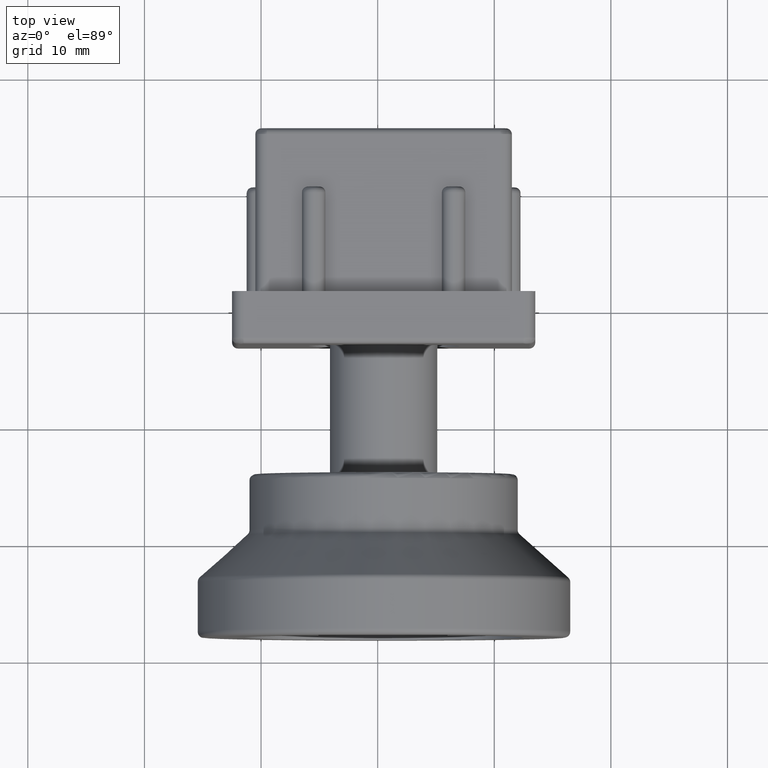
[diagram: clean part render]
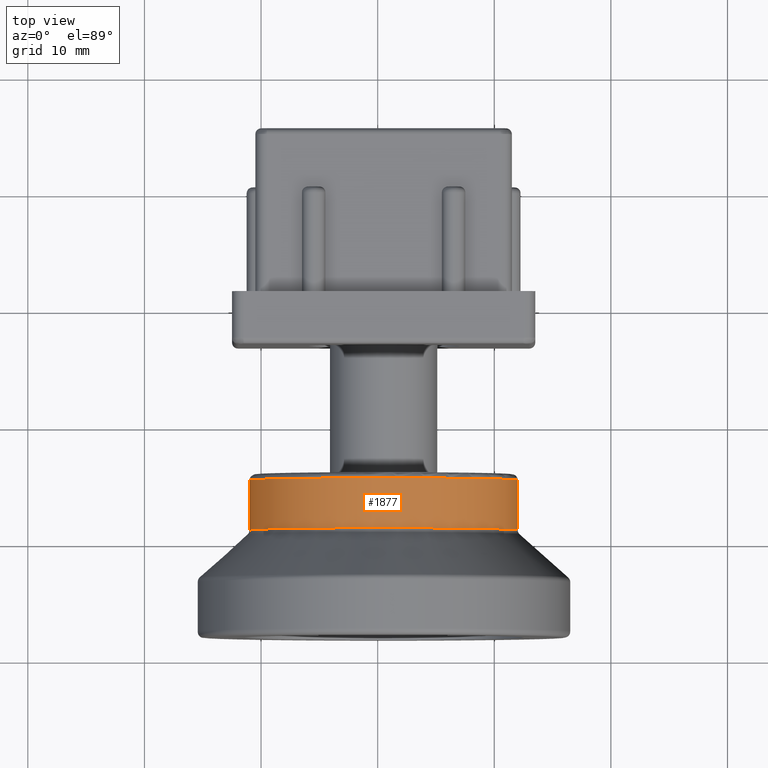
[diagram: same view with one face highlighted and labeled with its STEP entity id]
A machine part, top view. The second image highlights one B-rep face of the part: STEP entity #1877.
In plain terms, the highlighted cylindrical surface (bore or boss wall) has radius 11.5 mm, axis along (0, -1, 0).
Its self-contained STEP definition (entity closure, byte-faithful):
#45=FACE_BOUND('',#395,.T.);
#82=CIRCLE('',#2019,11.5);
#83=CIRCLE('',#2021,11.5);
#266=FACE_OUTER_BOUND('',#394,.T.);
#394=EDGE_LOOP('',(#1356));
#395=EDGE_LOOP('',(#1357));
#849=VERTEX_POINT('',#3099);
#850=VERTEX_POINT('',#3102);
#1051=EDGE_CURVE('',#849,#849,#82,.T.);
#1052=EDGE_CURVE('',#850,#850,#83,.T.);
#1356=ORIENTED_EDGE('',*,*,#1052,.F.);
#1357=ORIENTED_EDGE('',*,*,#1051,.F.);
#1813=CYLINDRICAL_SURFACE('',#2020,11.5);
#1877=ADVANCED_FACE('',(#266,#45),#1813,.T.);
#2019=AXIS2_PLACEMENT_3D('',#3100,#2338,#2339);
#2020=AXIS2_PLACEMENT_3D('',#3101,#2340,#2341);
#2021=AXIS2_PLACEMENT_3D('',#3103,#2342,#2343);
#2338=DIRECTION('center_axis',(6.34413156928661E-17,-1.,0.));
#2339=DIRECTION('ref_axis',(-1.,-6.3355118253066E-17,1.22464679914735E-16));
#2340=DIRECTION('center_axis',(6.34413156928661E-17,-1.,0.));
#2341=DIRECTION('ref_axis',(1.,0.,0.));
#2342=DIRECTION('center_axis',(-6.34413156928661E-17,1.,0.));
#2343=DIRECTION('ref_axis',(-1.,-6.63720286460691E-17,1.22464679914735E-16));
#3099=CARTESIAN_POINT('',(11.5,9.22453303215513,0.));
#3100=CARTESIAN_POINT('Origin',(-5.85216512212225E-16,9.22453303215513,
0.));
#3101=CARTESIAN_POINT('Origin',(-7.2957513046796E-16,11.5,0.));
#3102=CARTESIAN_POINT('',(11.5,13.5,-2.81668763803891E-15));
#3103=CARTESIAN_POINT('Origin',(-8.56457761853692E-16,13.5,0.));